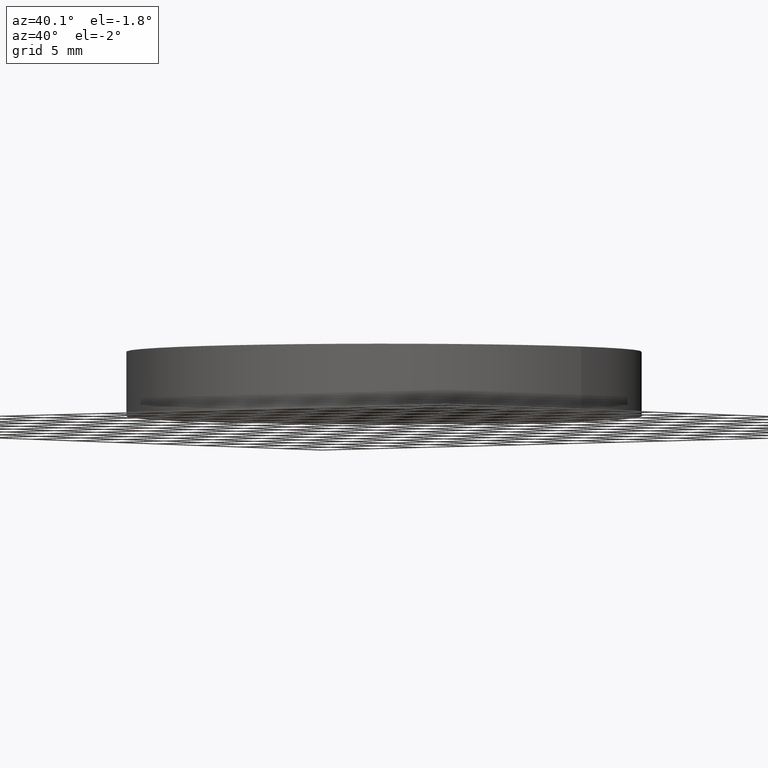
[diagram: clean part render]
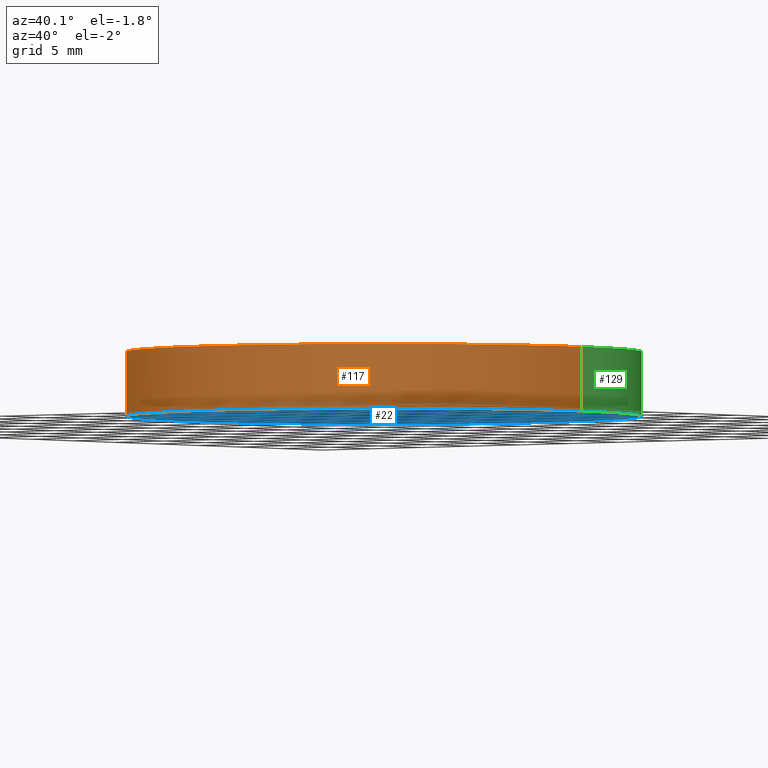
[diagram: same view with three faces highlighted in distinct colors, each labeled with its STEP entity id]
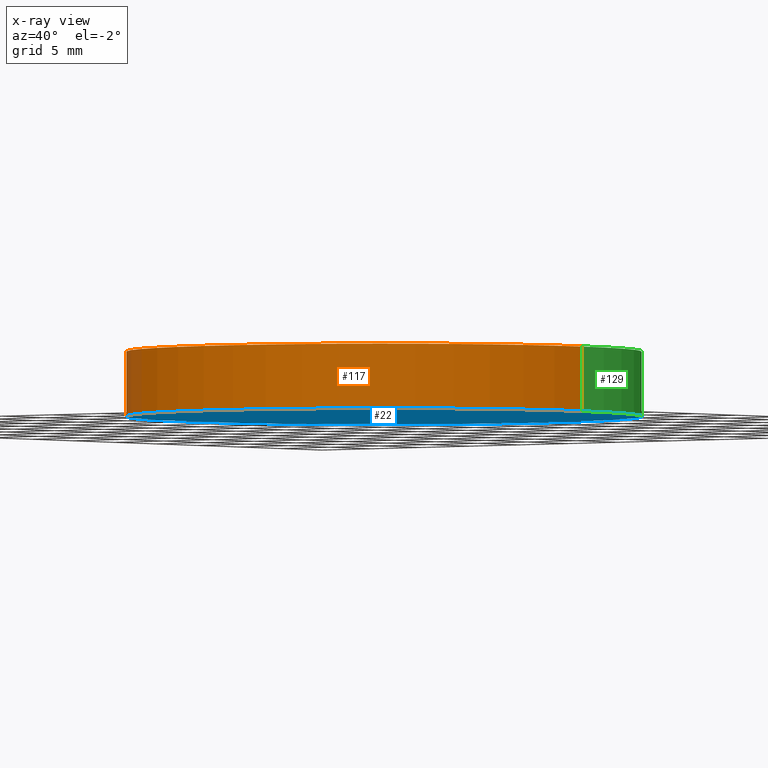
[diagram: x-ray of the same camera — body ghosted, the three highlighted faces saturated]
A machine part, auxiliary view with three faces highlighted in distinct colors.
The next image is the same camera in x-ray (body ghosted, the three faces saturated) — at least one of them is partly hidden behind the body in this view.
Their STEP definitions:

[orange] entity #117 — the highlighted cylindrical surface (partial cylindrical patch) has radius 20 mm, axis along (-0, -0, -1).
#9 = CARTESIAN_POINT ( 'NONE',  ( 0.0000000000000000000, 0.0000000000000000000, 5.000000000000000000 ) ) ;
#16 = DIRECTION ( 'NONE',  ( -1.000000000000000000, 0.0000000000000000000, 0.0000000000000000000 ) ) ;
#18 = ORIENTED_EDGE ( 'NONE', *, *, #26, .T. ) ;
#19 = DIRECTION ( 'NONE',  ( 1.000000000000000000, 0.0000000000000000000, 0.0000000000000000000 ) ) ;
#26 = EDGE_CURVE ( 'NONE', #48, #113, #59, .T. ) ;
#28 = AXIS2_PLACEMENT_3D ( 'NONE', #82, #125, #66 ) ;
#29 = CARTESIAN_POINT ( 'NONE',  ( -20.00000000000000000, 0.0000000000000000000, 5.000000000000000000 ) ) ;
#30 = CIRCLE ( 'NONE', #28, 20.00000000000000000 ) ;
#32 = ORIENTED_EDGE ( 'NONE', *, *, #65, .T. ) ;
#34 = DIRECTION ( 'NONE',  ( -0.0000000000000000000, -0.0000000000000000000, -1.000000000000000000 ) ) ;
#39 = ORIENTED_EDGE ( 'NONE', *, *, #58, .F. ) ;
#43 = CARTESIAN_POINT ( 'NONE',  ( 20.00000000000000000, 2.449293598294706500E-015, 5.000000000000000000 ) ) ;
#48 = VERTEX_POINT ( 'NONE', #119 ) ;
#49 = DIRECTION ( 'NONE',  ( 0.0000000000000000000, 0.0000000000000000000, 1.000000000000000000 ) ) ;
#51 = EDGE_CURVE ( 'NONE', #48, #92, #134, .T. ) ;
#58 = EDGE_CURVE ( 'NONE', #92, #68, #132, .T. ) ;
#59 = LINE ( 'NONE', #29, #62 ) ;
#62 = VECTOR ( 'NONE', #34, 1000.000000000000000 ) ;
#65 = EDGE_CURVE ( 'NONE', #113, #68, #30, .T. ) ;
#66 = DIRECTION ( 'NONE',  ( 1.000000000000000000, 0.0000000000000000000, 0.0000000000000000000 ) ) ;
#67 = AXIS2_PLACEMENT_3D ( 'NONE', #9, #49, #19 ) ;
#68 = VERTEX_POINT ( 'NONE', #140 ) ;
#73 = EDGE_LOOP ( 'NONE', ( #39, #121, #18, #32 ) ) ;
#77 = AXIS2_PLACEMENT_3D ( 'NONE', #89, #79, #16 ) ;
#79 = DIRECTION ( 'NONE',  ( -0.0000000000000000000, -0.0000000000000000000, -1.000000000000000000 ) ) ;
#82 = CARTESIAN_POINT ( 'NONE',  ( 0.0000000000000000000, 0.0000000000000000000, 0.0000000000000000000 ) ) ;
#89 = CARTESIAN_POINT ( 'NONE',  ( 0.0000000000000000000, 0.0000000000000000000, 5.000000000000000000 ) ) ;
#90 = VECTOR ( 'NONE', #127, 1000.000000000000000 ) ;
#92 = VERTEX_POINT ( 'NONE', #43 ) ;
#97 = CARTESIAN_POINT ( 'NONE',  ( 20.00000000000000000, 2.449293598294706500E-015, 5.000000000000000000 ) ) ;
#99 = CYLINDRICAL_SURFACE ( 'NONE', #77, 20.00000000000000000 ) ;
#113 = VERTEX_POINT ( 'NONE', #138 ) ;
#117 = ADVANCED_FACE ( 'NONE', ( #123 ), #99, .T. ) ;
#119 = CARTESIAN_POINT ( 'NONE',  ( -20.00000000000000000, 0.0000000000000000000, 5.000000000000000000 ) ) ;
#121 = ORIENTED_EDGE ( 'NONE', *, *, #51, .F. ) ;
#123 = FACE_OUTER_BOUND ( 'NONE', #73, .T. ) ;
#125 = DIRECTION ( 'NONE',  ( 0.0000000000000000000, 0.0000000000000000000, 1.000000000000000000 ) ) ;
#127 = DIRECTION ( 'NONE',  ( -0.0000000000000000000, -0.0000000000000000000, -1.000000000000000000 ) ) ;
#132 = LINE ( 'NONE', #97, #90 ) ;
#134 = CIRCLE ( 'NONE', #67, 20.00000000000000000 ) ;
#138 = CARTESIAN_POINT ( 'NONE',  ( -20.00000000000000000, 0.0000000000000000000, 0.0000000000000000000 ) ) ;
#140 = CARTESIAN_POINT ( 'NONE',  ( 20.00000000000000000, 2.449293598294706500E-015, 0.0000000000000000000 ) ) ;

[blue] entity #22 — the highlighted planar face has unit normal (0, 0, 1).
#4 = CIRCLE ( 'NONE', #63, 20.00000000000000000 ) ;
#11 = DIRECTION ( 'NONE',  ( 1.000000000000000000, 0.0000000000000000000, 0.0000000000000000000 ) ) ;
#13 = EDGE_CURVE ( 'NONE', #68, #113, #4, .T. ) ;
#14 = DIRECTION ( 'NONE',  ( 1.000000000000000000, 0.0000000000000000000, -0.0000000000000000000 ) ) ;
#21 = PLANE ( 'NONE',  #98 ) ;
#22 = ADVANCED_FACE ( 'NONE', ( #40 ), #21, .F. ) ;
#28 = AXIS2_PLACEMENT_3D ( 'NONE', #82, #125, #66 ) ;
#30 = CIRCLE ( 'NONE', #28, 20.00000000000000000 ) ;
#40 = FACE_OUTER_BOUND ( 'NONE', #81, .T. ) ;
#63 = AXIS2_PLACEMENT_3D ( 'NONE', #84, #122, #11 ) ;
#65 = EDGE_CURVE ( 'NONE', #113, #68, #30, .T. ) ;
#66 = DIRECTION ( 'NONE',  ( 1.000000000000000000, 0.0000000000000000000, 0.0000000000000000000 ) ) ;
#68 = VERTEX_POINT ( 'NONE', #140 ) ;
#81 = EDGE_LOOP ( 'NONE', ( #109, #106 ) ) ;
#82 = CARTESIAN_POINT ( 'NONE',  ( 0.0000000000000000000, 0.0000000000000000000, 0.0000000000000000000 ) ) ;
#84 = CARTESIAN_POINT ( 'NONE',  ( 0.0000000000000000000, 0.0000000000000000000, 0.0000000000000000000 ) ) ;
#86 = CARTESIAN_POINT ( 'NONE',  ( 0.0000000000000000000, 0.0000000000000000000, 0.0000000000000000000 ) ) ;
#98 = AXIS2_PLACEMENT_3D ( 'NONE', #86, #133, #14 ) ;
#106 = ORIENTED_EDGE ( 'NONE', *, *, #13, .F. ) ;
#109 = ORIENTED_EDGE ( 'NONE', *, *, #65, .F. ) ;
#113 = VERTEX_POINT ( 'NONE', #138 ) ;
#122 = DIRECTION ( 'NONE',  ( 0.0000000000000000000, 0.0000000000000000000, 1.000000000000000000 ) ) ;
#125 = DIRECTION ( 'NONE',  ( 0.0000000000000000000, 0.0000000000000000000, 1.000000000000000000 ) ) ;
#133 = DIRECTION ( 'NONE',  ( 0.0000000000000000000, 0.0000000000000000000, 1.000000000000000000 ) ) ;
#138 = CARTESIAN_POINT ( 'NONE',  ( -20.00000000000000000, 0.0000000000000000000, 0.0000000000000000000 ) ) ;
#140 = CARTESIAN_POINT ( 'NONE',  ( 20.00000000000000000, 2.449293598294706500E-015, 0.0000000000000000000 ) ) ;

[green] entity #129 — the highlighted cylindrical surface (partial cylindrical patch) has radius 20 mm, axis along (-0, -0, -1).
#4 = CIRCLE ( 'NONE', #63, 20.00000000000000000 ) ;
#8 = ORIENTED_EDGE ( 'NONE', *, *, #45, .F. ) ;
#11 = DIRECTION ( 'NONE',  ( 1.000000000000000000, 0.0000000000000000000, 0.0000000000000000000 ) ) ;
#13 = EDGE_CURVE ( 'NONE', #68, #113, #4, .T. ) ;
#20 = CIRCLE ( 'NONE', #107, 20.00000000000000000 ) ;
#24 = CYLINDRICAL_SURFACE ( 'NONE', #105, 20.00000000000000000 ) ;
#26 = EDGE_CURVE ( 'NONE', #48, #113, #59, .T. ) ;
#29 = CARTESIAN_POINT ( 'NONE',  ( -20.00000000000000000, 0.0000000000000000000, 5.000000000000000000 ) ) ;
#34 = DIRECTION ( 'NONE',  ( -0.0000000000000000000, -0.0000000000000000000, -1.000000000000000000 ) ) ;
#35 = FACE_OUTER_BOUND ( 'NONE', #118, .T. ) ;
#37 = ORIENTED_EDGE ( 'NONE', *, *, #13, .T. ) ;
#38 = DIRECTION ( 'NONE',  ( -0.0000000000000000000, -0.0000000000000000000, -1.000000000000000000 ) ) ;
#43 = CARTESIAN_POINT ( 'NONE',  ( 20.00000000000000000, 2.449293598294706500E-015, 5.000000000000000000 ) ) ;
#45 = EDGE_CURVE ( 'NONE', #92, #48, #20, .T. ) ;
#47 = DIRECTION ( 'NONE',  ( 1.000000000000000000, 0.0000000000000000000, 0.0000000000000000000 ) ) ;
#48 = VERTEX_POINT ( 'NONE', #119 ) ;
#52 = DIRECTION ( 'NONE',  ( -1.000000000000000000, 0.0000000000000000000, 0.0000000000000000000 ) ) ;
#58 = EDGE_CURVE ( 'NONE', #92, #68, #132, .T. ) ;
#59 = LINE ( 'NONE', #29, #62 ) ;
#62 = VECTOR ( 'NONE', #34, 1000.000000000000000 ) ;
#63 = AXIS2_PLACEMENT_3D ( 'NONE', #84, #122, #11 ) ;
#68 = VERTEX_POINT ( 'NONE', #140 ) ;
#69 = DIRECTION ( 'NONE',  ( 0.0000000000000000000, 0.0000000000000000000, 1.000000000000000000 ) ) ;
#70 = ORIENTED_EDGE ( 'NONE', *, *, #26, .F. ) ;
#84 = CARTESIAN_POINT ( 'NONE',  ( 0.0000000000000000000, 0.0000000000000000000, 0.0000000000000000000 ) ) ;
#90 = VECTOR ( 'NONE', #127, 1000.000000000000000 ) ;
#92 = VERTEX_POINT ( 'NONE', #43 ) ;
#97 = CARTESIAN_POINT ( 'NONE',  ( 20.00000000000000000, 2.449293598294706500E-015, 5.000000000000000000 ) ) ;
#103 = ORIENTED_EDGE ( 'NONE', *, *, #58, .T. ) ;
#105 = AXIS2_PLACEMENT_3D ( 'NONE', #130, #38, #52 ) ;
#107 = AXIS2_PLACEMENT_3D ( 'NONE', #136, #69, #47 ) ;
#113 = VERTEX_POINT ( 'NONE', #138 ) ;
#118 = EDGE_LOOP ( 'NONE', ( #8, #103, #37, #70 ) ) ;
#119 = CARTESIAN_POINT ( 'NONE',  ( -20.00000000000000000, 0.0000000000000000000, 5.000000000000000000 ) ) ;
#122 = DIRECTION ( 'NONE',  ( 0.0000000000000000000, 0.0000000000000000000, 1.000000000000000000 ) ) ;
#127 = DIRECTION ( 'NONE',  ( -0.0000000000000000000, -0.0000000000000000000, -1.000000000000000000 ) ) ;
#129 = ADVANCED_FACE ( 'NONE', ( #35 ), #24, .T. ) ;
#130 = CARTESIAN_POINT ( 'NONE',  ( 0.0000000000000000000, 0.0000000000000000000, 5.000000000000000000 ) ) ;
#132 = LINE ( 'NONE', #97, #90 ) ;
#136 = CARTESIAN_POINT ( 'NONE',  ( 0.0000000000000000000, 0.0000000000000000000, 5.000000000000000000 ) ) ;
#138 = CARTESIAN_POINT ( 'NONE',  ( -20.00000000000000000, 0.0000000000000000000, 0.0000000000000000000 ) ) ;
#140 = CARTESIAN_POINT ( 'NONE',  ( 20.00000000000000000, 2.449293598294706500E-015, 0.0000000000000000000 ) ) ;